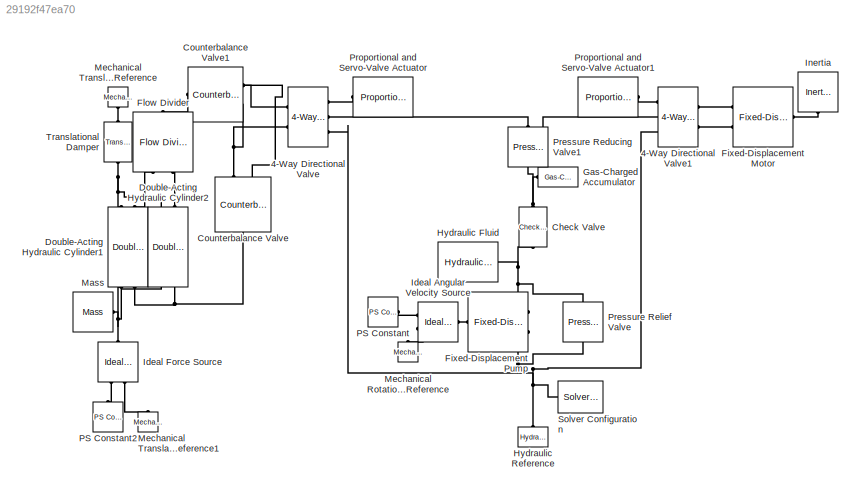
MODEL slx_29192f47ea70
KIND model
CONFIG AbsTol = auto
CONFIG EnableMultiTasking = off
CONFIG FixedStep = auto
CONFIG MaxStep = auto
CONFIG MinStep = auto
CONFIG RelTol = 1e-3
CONFIG SampleTimeConstraint = Unconstrained
CONFIG Solver = VariableStepAuto
CONFIG SolverName = VariableStepAuto
CONFIG StartTime = 0
CONFIG StopTime = 60
BLOCK [Reference] 4-Way Directional Valve  REF=sh_lib/Valves/Directional Valves/4-Way Directional
Valve
  Ports = [0, 0, 0, 0, 0, 2, 3]
  SourceBlock = sh_lib/Valves/Directional Valves/4-Way Directional\nValve
  SourceProductBaseCode = SH
  SourceProductName = Simscape Fluids
  SourceType = 4-Way Directional\nValve
BLOCK [Reference] 4-Way Directional Valve1  REF=sh_lib/Valves/Directional Valves/4-Way Directional
Valve
  Ports = [0, 0, 0, 0, 0, 2, 3]
  SourceBlock = sh_lib/Valves/Directional Valves/4-Way Directional\nValve
  SourceProductBaseCode = SH
  SourceProductName = Simscape Fluids
  SourceType = 4-Way Directional\nValve
BLOCK [Reference] Check Valve  REF=sh_lib/Valves/Directional Valves/Check Valve
  Ports = [0, 0, 0, 0, 0, 1, 1]
  SourceBlock = sh_lib/Valves/Directional Valves/Check Valve
  SourceProductBaseCode = SH
  SourceProductName = Simscape Fluids
  SourceType = Check Valve
BLOCK [Reference] Counterbalance Valve  REF=sh_lib/Valves/Flow Control Valves/Counterbalance Valve
  Ports = [0, 0, 0, 0, 0, 2, 1]
  SourceBlock = sh_lib/Valves/Flow Control Valves/Counterbalance Valve
  SourceProductBaseCode = SH
  SourceProductName = Simscape Fluids
  SourceType = Counterbalance Valve
BLOCK [Reference] Counterbalance Valve1  REF=sh_lib/Valves/Flow Control Valves/Counterbalance Valve
  Ports = [0, 0, 0, 0, 0, 2, 1]
  SourceBlock = sh_lib/Valves/Flow Control Valves/Counterbalance Valve
  SourceProductBaseCode = SH
  SourceProductName = Simscape Fluids
  SourceType = Counterbalance Valve
BLOCK [Reference] Double-Acting Hydraulic Cylinder1  REF=sh_lib/Hydraulic Cylinders/Double-Acting
Hydraulic Cylinder
  Ports = [0, 0, 0, 0, 0, 2, 2]
  SourceBlock = sh_lib/Hydraulic Cylinders/Double-Acting\nHydraulic Cylinder
  SourceProductBaseCode = SH
  SourceProductName = Simscape Fluids
  SourceType = Double-Acting\nHydraulic Cylinder
BLOCK [Reference] Double-Acting Hydraulic Cylinder2  REF=sh_lib/Hydraulic Cylinders/Double-Acting
Hydraulic Cylinder
  Ports = [0, 0, 0, 0, 0, 2, 2]
  SourceBlock = sh_lib/Hydraulic Cylinders/Double-Acting\nHydraulic Cylinder
  SourceProductBaseCode = SH
  SourceProductName = Simscape Fluids
  SourceType = Double-Acting\nHydraulic Cylinder
BLOCK [Reference] Fixed-Displacement Motor  REF=sh_lib/Pumps and Motors/Fixed-Displacement
Motor
  Ports = [0, 0, 0, 0, 0, 2, 1]
  SourceBlock = sh_lib/Pumps and Motors/Fixed-Displacement\nMotor
  SourceProductBaseCode = SH
  SourceProductName = Simscape Fluids
  SourceType = Fixed-Displacement\nMotor
BLOCK [Reference] Fixed-Displacement Pump  REF=sh_lib/Pumps and Motors/Fixed-Displacement
Pump
  Ports = [0, 0, 0, 0, 0, 1, 2]
  SourceBlock = sh_lib/Pumps and Motors/Fixed-Displacement\nPump
  SourceProductBaseCode = SH
  SourceProductName = Simscape Fluids
  SourceType = Fixed-Displacement\nPump
BLOCK [Reference] Flow Divider  REF=sh_lib/Valves/Flow Control Valves/Flow Divider
  Ports = [0, 0, 0, 0, 0, 1, 2]
  SourceBlock = sh_lib/Valves/Flow Control Valves/Flow Divider
  SourceProductBaseCode = SH
  SourceProductName = Simscape Fluids
  SourceType = Flow Divider
BLOCK [Reference] Gas-Charged Accumulator  REF=sh_lib/Accumulators/Gas-Charged
Accumulator
  Ports = [0, 0, 0, 0, 0, 0, 1]
  SourceBlock = sh_lib/Accumulators/Gas-Charged\nAccumulator
  SourceProductBaseCode = SH
  SourceProductName = Simscape Fluids
  SourceType = Gas-Charged\nAccumulator
BLOCK [Reference] Hydraulic Fluid  REF=sh_lib/Hydraulic Utilities/Hydraulic Fluid
  Ports = [0, 0, 0, 0, 0, 0, 1]
  SourceBlock = sh_lib/Hydraulic Utilities/Hydraulic Fluid
  SourceProductBaseCode = SH
  SourceProductName = Simscape Fluids
  SourceType = Hydraulic Fluid
BLOCK [Reference] Hydraulic Reference  REF=fl_lib/Hydraulic/Hydraulic Elements/Hydraulic Reference
  Ports = [0, 0, 0, 0, 0, 1]
  SourceBlock = fl_lib/Hydraulic/Hydraulic Elements/Hydraulic Reference
  SourceProductBaseCode = SS
  SourceProductName = Simscape
  SourceType = Hydraulic Reference
BLOCK [Reference] Ideal Angular Velocity Source  REF=fl_lib/Mechanical/Mechanical Sources/Ideal Angular
Velocity Source
  Ports = [0, 0, 0, 0, 0, 1, 2]
  SourceBlock = fl_lib/Mechanical/Mechanical Sources/Ideal Angular\nVelocity Source
  SourceProductBaseCode = SS
  SourceProductName = Simscape
  SourceType = Ideal Angular\nVelocity Source
BLOCK [Reference] Ideal Force Source  REF=fl_lib/Mechanical/Mechanical Sources/Ideal Force Source
  Ports = [0, 0, 0, 0, 0, 1, 2]
  SourceBlock = fl_lib/Mechanical/Mechanical Sources/Ideal Force Source
  SourceProductBaseCode = SS
  SourceProductName = Simscape
  SourceType = Ideal Force Source
BLOCK [Reference] Inertia  REF=fl_lib/Mechanical/Rotational Elements/Inertia
  Ports = [0, 0, 0, 0, 0, 1]
  SourceBlock = fl_lib/Mechanical/Rotational Elements/Inertia
  SourceProductBaseCode = SS
  SourceProductName = Simscape
  SourceType = Inertia
BLOCK [Reference] Mass  REF=fl_lib/Mechanical/Translational
Elements/Mass
  Ports = [0, 0, 0, 0, 0, 1]
  SourceBlock = fl_lib/Mechanical/Translational\nElements/Mass
  SourceProductBaseCode = SS
  SourceProductName = Simscape
  SourceType = Mass
BLOCK [Reference] Mechanical Rotational Reference  REF=fl_lib/Mechanical/Rotational Elements/Mechanical
Rotational Reference
  Ports = [0, 0, 0, 0, 0, 1]
  SourceBlock = fl_lib/Mechanical/Rotational Elements/Mechanical\nRotational Reference
  SourceProductBaseCode = SS
  SourceProductName = Simscape
  SourceType = Mechanical\nRotational Reference
BLOCK [Reference] Mechanical Translational Reference  REF=fl_lib/Mechanical/Translational
Elements/Mechanical
Translational
Reference
  Ports = [0, 0, 0, 0, 0, 1]
  SourceBlock = fl_lib/Mechanical/Translational\nElements/Mechanical\nTranslational\nReference
  SourceProductBaseCode = SS
  SourceProductName = Simscape
  SourceType = Mechanical\nTranslational\nReference
BLOCK [Reference] Mechanical Translational Reference1  REF=fl_lib/Mechanical/Translational
Elements/Mechanical
Translational
Reference
  Ports = [0, 0, 0, 0, 0, 1]
  SourceBlock = fl_lib/Mechanical/Translational\nElements/Mechanical\nTranslational\nReference
  SourceProductBaseCode = SS
  SourceProductName = Simscape
  SourceType = Mechanical\nTranslational\nReference
BLOCK [Reference] PS Constant  REF=fl_lib/Physical Signals/Sources/PS Constant
  Ports = [0, 0, 0, 0, 0, 0, 1]
  SourceBlock = fl_lib/Physical Signals/Sources/PS Constant
  SourceProductBaseCode = SS
  SourceProductName = Simscape
  SourceType = PS Constant
BLOCK [Reference] PS Constant2  REF=fl_lib/Physical Signals/Sources/PS Constant
  Ports = [0, 0, 0, 0, 0, 0, 1]
  SourceBlock = fl_lib/Physical Signals/Sources/PS Constant
  SourceProductBaseCode = SS
  SourceProductName = Simscape
  SourceType = PS Constant
BLOCK [Reference] Pressure Reducing Valve1  REF=sh_lib/Valves/Pressure Control
Valves/Pressure Reducing
Valve
  Ports = [0, 0, 0, 0, 0, 1, 1]
  SourceBlock = sh_lib/Valves/Pressure Control\nValves/Pressure Reducing\nValve
  SourceProductBaseCode = SH
  SourceProductName = Simscape Fluids
  SourceType = Pressure Reducing\nValve
BLOCK [Reference] Pressure Relief Valve  REF=sh_lib/Valves/Pressure Control
Valves/Pressure Relief
Valve
  Ports = [0, 0, 0, 0, 0, 1, 1]
  SourceBlock = sh_lib/Valves/Pressure Control\nValves/Pressure Relief\nValve
  SourceProductBaseCode = SH
  SourceProductName = Simscape Fluids
  SourceType = Pressure Relief\nValve
BLOCK [Reference] Proportional and Servo-Valve Actuator  REF=sh_lib/Valves/Valve Actuators/Proportional and
Servo-Valve Actuator
  Ports = [0, 0, 0, 0, 0, 1, 1]
  SourceBlock = sh_lib/Valves/Valve Actuators/Proportional and\nServo-Valve Actuator
  SourceProductBaseCode = SH
  SourceProductName = Simscape Fluids
  SourceType = Proportional and\nServo-Valve Actuator
BLOCK [Reference] Proportional and Servo-Valve Actuator1  REF=sh_lib/Valves/Valve Actuators/Proportional and
Servo-Valve Actuator
  Ports = [0, 0, 0, 0, 0, 1, 1]
  SourceBlock = sh_lib/Valves/Valve Actuators/Proportional and\nServo-Valve Actuator
  SourceProductBaseCode = SH
  SourceProductName = Simscape Fluids
  SourceType = Proportional and\nServo-Valve Actuator
BLOCK [Reference] Solver Configuration  REF=nesl_utility/Solver
Configuration
  Ports = [0, 0, 0, 0, 0, 0, 1]
  SourceBlock = nesl_utility/Solver\nConfiguration
  SourceProductBaseCode = SS
  SourceProductName = Simscape
  SourceType = Solver\nConfiguration
BLOCK [Reference] Translational Damper  REF=sdl_lib/Couplings & Drives/Springs & Dampers/Translational Damper
  Ports = [0, 0, 0, 0, 0, 1, 1]
  SourceBlock = sdl_lib/Couplings & Drives/Springs & Dampers/Translational Damper
  SourceProductBaseCode = LD
  SourceProductName = Simscape Driveline
  SourceType = Translational Damper
PLINE 4-Way Directional Valve1:LConn1 -- Fixed-Displacement Motor:LConn1
PLINE 4-Way Directional Valve1:LConn2 -- Fixed-Displacement Motor:LConn2
PLINE 4-Way Directional Valve1:RConn1 -- Proportional and Servo-Valve Actuator1:RConn1
PNET net1: 4-Way Directional Valve1:RConn2 -- 4-Way Directional Valve:RConn2 -- Pressure Reducing Valve1:RConn1
PNET net2: 4-Way Directional Valve1:RConn3 -- 4-Way Directional Valve:RConn3 -- Fixed-Displacement Pump:RConn2 -- Hydraulic Reference:LConn1 -- Pressure Relief Valve:RConn1 -- Solver Configuration:RConn1
PNET net3: 4-Way Directional Valve:LConn1 -- Counterbalance Valve1:LConn1 -- Counterbalance Valve:LConn2
PNET net4: 4-Way Directional Valve:LConn2 -- Counterbalance Valve1:LConn2 -- Counterbalance Valve:LConn1
PLINE 4-Way Directional Valve:RConn1 -- Proportional and Servo-Valve Actuator:RConn1
PNET net5: Check Valve:LConn1 -- Fixed-Displacement Pump:RConn1 -- Hydraulic Fluid:RConn1 -- Pressure Relief Valve:LConn1
PNET net6: Check Valve:RConn1 -- Gas-Charged Accumulator:RConn1 -- Pressure Reducing Valve1:LConn1
PLINE Counterbalance Valve1:RConn1 -- Flow Divider:LConn1
PNET net7: Counterbalance Valve:RConn1 -- Double-Acting Hydraulic Cylinder1:RConn2 -- Double-Acting Hydraulic Cylinder2:RConn2
PNET net8: Double-Acting Hydraulic Cylinder1:LConn1 -- Double-Acting Hydraulic Cylinder2:LConn1 -- Translational Damper:LConn1
PLINE Double-Acting Hydraulic Cylinder1:LConn2 -- Flow Divider:RConn1
PNET net9: Double-Acting Hydraulic Cylinder1:RConn1 -- Double-Acting Hydraulic Cylinder2:RConn1 -- Ideal Force Source:LConn1 -- Mass:LConn1
PLINE Double-Acting Hydraulic Cylinder2:LConn2 -- Flow Divider:RConn2
PLINE Fixed-Displacement Motor:RConn1 -- Inertia:LConn1
PLINE Fixed-Displacement Pump:LConn1 -- Ideal Angular Velocity Source:LConn1
PLINE Ideal Angular Velocity Source:RConn1 -- PS Constant:RConn1
PLINE Ideal Angular Velocity Source:RConn2 -- Mechanical Rotational Reference:LConn1
PLINE Ideal Force Source:RConn1 -- PS Constant2:RConn1
PLINE Ideal Force Source:RConn2 -- Mechanical Translational Reference1:LConn1
PLINE Mechanical Translational Reference:LConn1 -- Translational Damper:RConn1
note: PNET lines group multi-terminal physical nets as a canonical sorted terminal list (undirected conserving connections); 2-terminal nets keep the pairwise PLINE form
